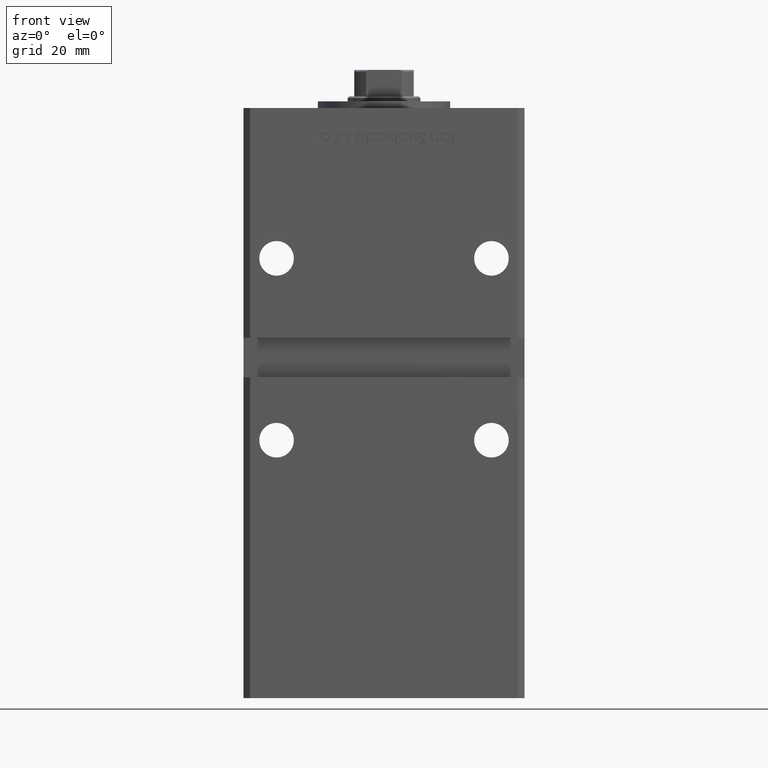
[diagram: clean part render]
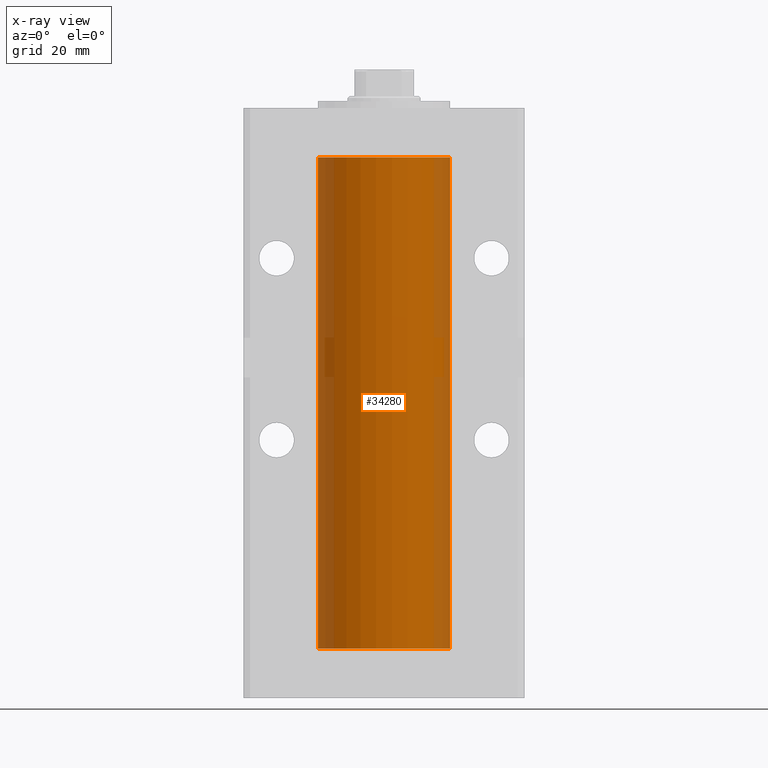
[diagram: x-ray — body ghosted, one internal face saturated and labeled with its STEP entity id]
A machine part, front view, then the same camera in x-ray: the body is ghosted and one INTERNAL B-rep face — a face not visible from any outside direction — is saturated and labeled: STEP entity #34280.
In plain terms, the highlighted cylindrical surface (partial cylindrical patch) has radius 20 mm, axis along (-0, -0, -1).
Its self-contained STEP definition (entity closure, byte-faithful):
#699 = CARTESIAN_POINT ( 'NONE',  ( 20.00000000000000000, 2.449293598294706513E-15, 148.5000000000000000 ) ) ;
#801 = DIRECTION ( 'NONE',  ( -0.000000000000000000, 0.000000000000000000, 1.000000000000000000 ) ) ;
#2130 = ORIENTED_EDGE ( 'NONE', *, *, #45960, .T. ) ;
#2408 = CARTESIAN_POINT ( 'NONE',  ( -20.00000000000000000, 0.000000000000000000, 0.000000000000000000 ) ) ;
#2544 = CARTESIAN_POINT ( 'NONE',  ( -20.00000000000000000, 0.000000000000000000, 148.5000000000000000 ) ) ;
#3192 = VERTEX_POINT ( 'NONE', #2408 ) ;
#4392 = EDGE_CURVE ( 'NONE', #3192, #32086, #9031, .T. ) ;
#4711 = DIRECTION ( 'NONE',  ( -0.000000000000000000, 0.000000000000000000, 1.000000000000000000 ) ) ;
#4983 = LINE ( 'NONE', #699, #24243 ) ;
#5255 = VECTOR ( 'NONE', #23250, 1000.000000000000000 ) ;
#5509 = DIRECTION ( 'NONE',  ( -0.000000000000000000, -0.000000000000000000, -1.000000000000000000 ) ) ;
#9031 = CIRCLE ( 'NONE', #37392, 20.00000000000000000 ) ;
#9925 = ORIENTED_EDGE ( 'NONE', *, *, #42206, .T. ) ;
#15568 = CIRCLE ( 'NONE', #35421, 20.00000000000000000 ) ;
#17117 = DIRECTION ( 'NONE',  ( -0.000000000000000000, -0.000000000000000000, -1.000000000000000000 ) ) ;
#17896 = CARTESIAN_POINT ( 'NONE',  ( 0.000000000000000000, 0.000000000000000000, 0.000000000000000000 ) ) ;
#18445 = FACE_OUTER_BOUND ( 'NONE', #30959, .T. ) ;
#21137 = DIRECTION ( 'NONE',  ( 1.000000000000000000, 0.000000000000000000, 0.000000000000000000 ) ) ;
#21897 = ORIENTED_EDGE ( 'NONE', *, *, #38935, .F. ) ;
#23250 = DIRECTION ( 'NONE',  ( -0.000000000000000000, -0.000000000000000000, -1.000000000000000000 ) ) ;
#24243 = VECTOR ( 'NONE', #17117, 1000.000000000000000 ) ;
#25551 = CARTESIAN_POINT ( 'NONE',  ( 20.00000000000000000, 2.449293598294706513E-15, 148.5000000000000000 ) ) ;
#25966 = CYLINDRICAL_SURFACE ( 'NONE', #36066, 20.00000000000000000 ) ;
#28925 = CARTESIAN_POINT ( 'NONE',  ( 20.00000000000000000, 2.449293598294706513E-15, 0.000000000000000000 ) ) ;
#30256 = CARTESIAN_POINT ( 'NONE',  ( 0.000000000000000000, 0.000000000000000000, 148.5000000000000000 ) ) ;
#30959 = EDGE_LOOP ( 'NONE', ( #9925, #2130, #39560, #21897 ) ) ;
#32086 = VERTEX_POINT ( 'NONE', #28925 ) ;
#34280 = ADVANCED_FACE ( 'NONE', ( #18445 ), #25966, .F. ) ;
#34834 = DIRECTION ( 'NONE',  ( -1.000000000000000000, 0.000000000000000000, 0.000000000000000000 ) ) ;
#35421 = AXIS2_PLACEMENT_3D ( 'NONE', #50522, #801, #42194 ) ;
#36066 = AXIS2_PLACEMENT_3D ( 'NONE', #30256, #5509, #34834 ) ;
#37392 = AXIS2_PLACEMENT_3D ( 'NONE', #17896, #4711, #21137 ) ;
#38935 = EDGE_CURVE ( 'NONE', #44367, #3192, #47707, .T. ) ;
#39560 = ORIENTED_EDGE ( 'NONE', *, *, #4392, .F. ) ;
#42194 = DIRECTION ( 'NONE',  ( 1.000000000000000000, 0.000000000000000000, 0.000000000000000000 ) ) ;
#42206 = EDGE_CURVE ( 'NONE', #44367, #43730, #15568, .T. ) ;
#42215 = CARTESIAN_POINT ( 'NONE',  ( -20.00000000000000000, 0.000000000000000000, 148.5000000000000000 ) ) ;
#43730 = VERTEX_POINT ( 'NONE', #25551 ) ;
#44367 = VERTEX_POINT ( 'NONE', #42215 ) ;
#45960 = EDGE_CURVE ( 'NONE', #43730, #32086, #4983, .T. ) ;
#47707 = LINE ( 'NONE', #2544, #5255 ) ;
#50522 = CARTESIAN_POINT ( 'NONE',  ( 0.000000000000000000, 0.000000000000000000, 148.5000000000000000 ) ) ;